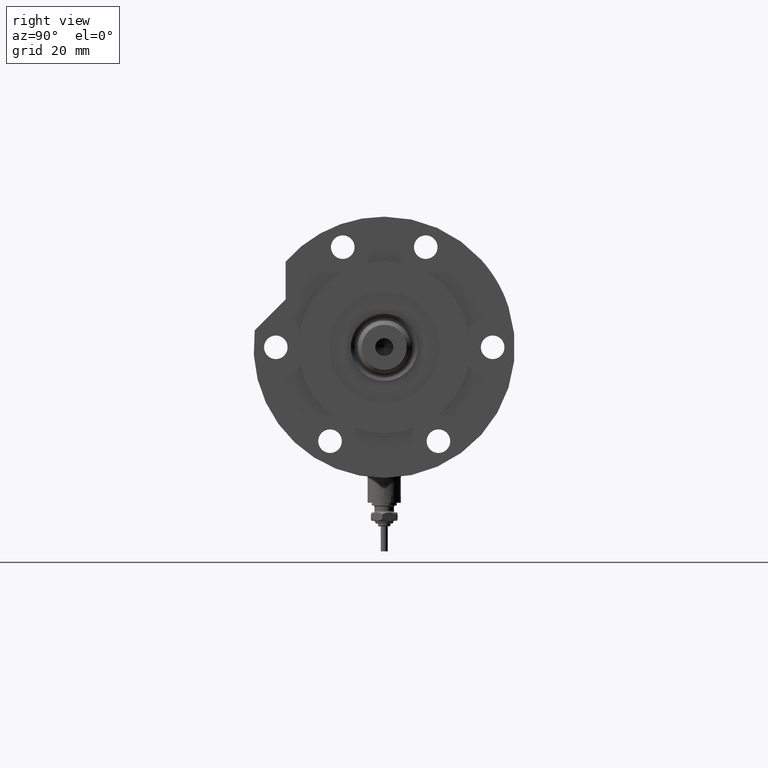
[diagram: clean part render]
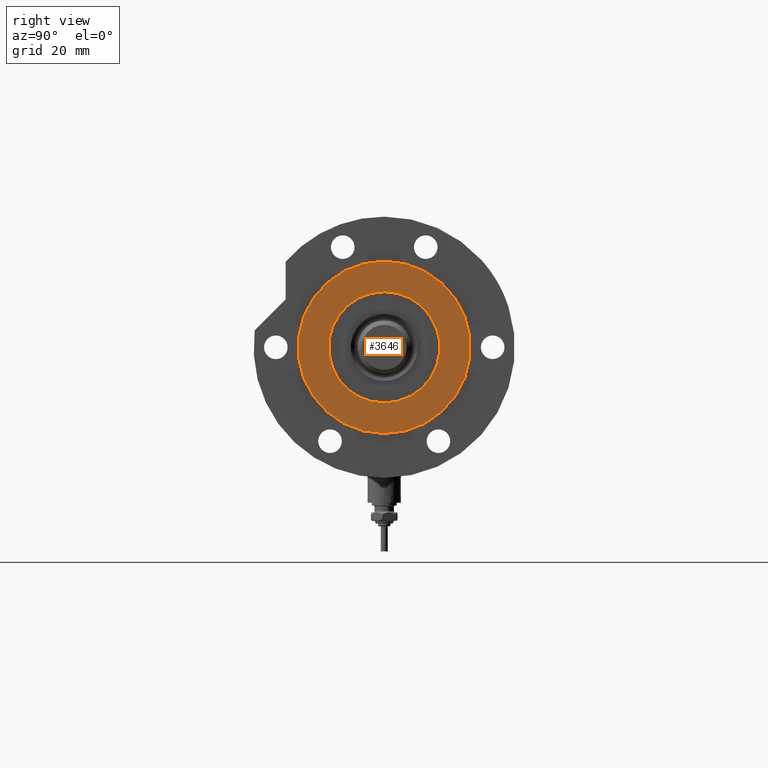
[diagram: same view with one face highlighted and labeled with its STEP entity id]
A machine part, right view. The second image highlights one B-rep face of the part: STEP entity #3646.
In plain terms, the highlighted planar face has unit normal (1, 0, -0).
Its self-contained STEP definition (entity closure, byte-faithful):
#91 = DIRECTION ( 'NONE',  ( 0.000000000000000000, 0.000000000000000000, 1.000000000000000000 ) ) ;
#517 = CIRCLE ( 'NONE', #7061, 31.00000000000000711 ) ;
#649 = AXIS2_PLACEMENT_3D ( 'NONE', #6317, #818, #1932 ) ;
#818 = DIRECTION ( 'NONE',  ( 0.000000000000000000, 0.000000000000000000, 1.000000000000000000 ) ) ;
#1046 = EDGE_CURVE ( 'NONE', #7667, #7759, #517, .T. ) ;
#1129 = EDGE_CURVE ( 'NONE', #7759, #7667, #4349, .T. ) ;
#1213 = CARTESIAN_POINT ( 'NONE',  ( 0.000000000000000000, 0.000000000000000000, 19.00000000000000355 ) ) ;
#1356 = ORIENTED_EDGE ( 'NONE', *, *, #1782, .F. ) ;
#1373 = CIRCLE ( 'NONE', #7162, 20.00000000000000000 ) ;
#1444 = ORIENTED_EDGE ( 'NONE', *, *, #1046, .T. ) ;
#1689 = PLANE ( 'NONE',  #4502 ) ;
#1782 = EDGE_CURVE ( 'NONE', #1907, #5967, #5118, .T. ) ;
#1907 = VERTEX_POINT ( 'NONE', #3400 ) ;
#1932 = DIRECTION ( 'NONE',  ( 1.000000000000000000, 0.000000000000000000, 0.000000000000000000 ) ) ;
#2127 = CARTESIAN_POINT ( 'NONE',  ( -31.00000000000000711, 0.000000000000000000, 19.00000000000000355 ) ) ;
#2160 = ORIENTED_EDGE ( 'NONE', *, *, #1129, .T. ) ;
#2327 = FACE_BOUND ( 'NONE', #6495, .T. ) ;
#2529 = DIRECTION ( 'NONE',  ( 1.000000000000000000, 0.000000000000000000, 0.000000000000000000 ) ) ;
#2563 = DIRECTION ( 'NONE',  ( 1.000000000000000000, 0.000000000000000000, 0.000000000000000000 ) ) ;
#2679 = CARTESIAN_POINT ( 'NONE',  ( 0.000000000000000000, 0.000000000000000000, 19.00000000000000355 ) ) ;
#3400 = CARTESIAN_POINT ( 'NONE',  ( -20.00000000000000000, 2.449293598294706513E-15, 19.00000000000000355 ) ) ;
#3646 = ADVANCED_FACE ( 'NONE', ( #2327, #7727 ), #1689, .T. ) ;
#3709 = ORIENTED_EDGE ( 'NONE', *, *, #4892, .F. ) ;
#4004 = DIRECTION ( 'NONE',  ( 0.000000000000000000, 0.000000000000000000, 1.000000000000000000 ) ) ;
#4349 = CIRCLE ( 'NONE', #6155, 31.00000000000000711 ) ;
#4403 = DIRECTION ( 'NONE',  ( 0.000000000000000000, 0.000000000000000000, 1.000000000000000000 ) ) ;
#4502 = AXIS2_PLACEMENT_3D ( 'NONE', #4758, #4004, #7202 ) ;
#4758 = CARTESIAN_POINT ( 'NONE',  ( 0.000000000000000000, 0.000000000000000000, 19.00000000000000355 ) ) ;
#4892 = EDGE_CURVE ( 'NONE', #5967, #1907, #1373, .T. ) ;
#5118 = CIRCLE ( 'NONE', #649, 20.00000000000000000 ) ;
#5121 = DIRECTION ( 'NONE',  ( 0.000000000000000000, 0.000000000000000000, 1.000000000000000000 ) ) ;
#5341 = CARTESIAN_POINT ( 'NONE',  ( 20.00000000000000000, 0.000000000000000000, 19.00000000000000355 ) ) ;
#5641 = CARTESIAN_POINT ( 'NONE',  ( 31.00000000000000711, 3.796405077356795904E-15, 19.00000000000000355 ) ) ;
#5967 = VERTEX_POINT ( 'NONE', #5341 ) ;
#6065 = CARTESIAN_POINT ( 'NONE',  ( 0.000000000000000000, 0.000000000000000000, 19.00000000000000355 ) ) ;
#6155 = AXIS2_PLACEMENT_3D ( 'NONE', #2679, #4403, #2563 ) ;
#6263 = DIRECTION ( 'NONE',  ( 1.000000000000000000, 0.000000000000000000, 0.000000000000000000 ) ) ;
#6317 = CARTESIAN_POINT ( 'NONE',  ( 0.000000000000000000, 0.000000000000000000, 19.00000000000000355 ) ) ;
#6495 = EDGE_LOOP ( 'NONE', ( #3709, #1356 ) ) ;
#6710 = EDGE_LOOP ( 'NONE', ( #1444, #2160 ) ) ;
#7061 = AXIS2_PLACEMENT_3D ( 'NONE', #6065, #5121, #6263 ) ;
#7162 = AXIS2_PLACEMENT_3D ( 'NONE', #1213, #91, #2529 ) ;
#7202 = DIRECTION ( 'NONE',  ( 1.000000000000000000, 0.000000000000000000, -0.000000000000000000 ) ) ;
#7667 = VERTEX_POINT ( 'NONE', #2127 ) ;
#7727 = FACE_OUTER_BOUND ( 'NONE', #6710, .T. ) ;
#7759 = VERTEX_POINT ( 'NONE', #5641 ) ;